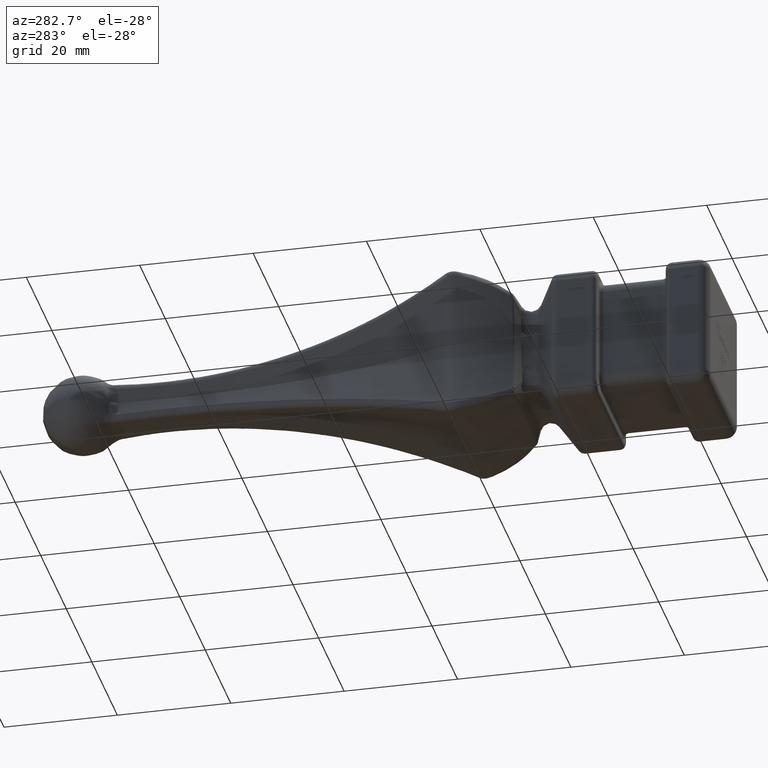
[diagram: clean part render]
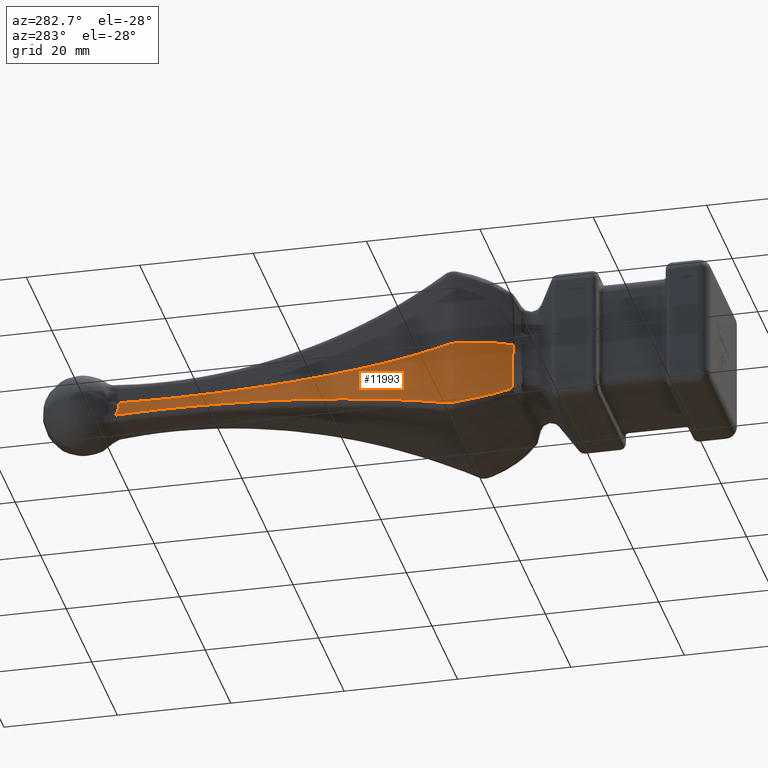
[diagram: same view with one face highlighted and labeled with its STEP entity id]
A machine part, auxiliary view. The second image highlights one B-rep face of the part: STEP entity #11993.
In plain terms, the highlighted face is a freeform B-spline surface patch.
Its self-contained STEP definition (entity closure, byte-faithful):
#14 = CARTESIAN_POINT ( 'NONE',  ( -13.98512764379215412, -0.3356598102932541461, -13.98512764379221451 ) ) ;
#179 = CARTESIAN_POINT ( 'NONE',  ( -9.539627466651655396, -10.18300411735938482, -8.234819032524248072 ) ) ;
#255 = CARTESIAN_POINT ( 'NONE',  ( -9.051590716567501360, -10.18300411735938305, 5.018131605746089186 ) ) ;
#363 = B_SPLINE_CURVE_WITH_KNOTS ( 'NONE', 3,
 ( #12695, #14404, #7314, #3518, #10648, #5333 ),
 .UNSPECIFIED., .F., .F.,
 ( 4, 2, 4 ),
 ( -5.943326225920290571E-08, 0.0007603462467077775396, 0.001520751926677814435 ),
 .UNSPECIFIED. ) ;
#407 = CARTESIAN_POINT ( 'NONE',  ( -11.71978409436971091, 0.6760241364080701310, 0.2434227091486908245 ) ) ;
#481 = CARTESIAN_POINT ( 'NONE',  ( -12.34097431892120156, -0.3356598102932545902, 6.969642051675049466 ) ) ;
#519 = CARTESIAN_POINT ( 'NONE',  ( -13.36861548744270856, 0.9769426254686837119, -12.19767723644735824 ) ) ;
#600 = CARTESIAN_POINT ( 'NONE',  ( -13.36861548744270856, 0.9769426254686837119, -12.19767723644735824 ) ) ;
#690 = ORIENTED_EDGE ( 'NONE', *, *, #4818, .T. ) ;
#954 = CARTESIAN_POINT ( 'NONE',  ( -12.01317934365865803, -0.1741682029892594186, 1.626303258728256454E-15 ) ) ;
#1100 = CARTESIAN_POINT ( 'NONE',  ( -11.98614334442297036, -0.5459188615091287167, -2.360680823997735045E-15 ) ) ;
#1180 = CARTESIAN_POINT ( 'NONE',  ( -9.808405869163907553, 5.630173729162039287, 1.138412281109779458E-15 ) ) ;
#1262 = CARTESIAN_POINT ( 'NONE',  ( -11.70022440348532200, 1.088498098395638936, -1.423015351387224570E-16 ) ) ;
#1676 = CARTESIAN_POINT ( 'NONE',  ( -11.90279600607053467, -6.148093008780580959, -10.77095069157962293 ) ) ;
#1744 = CARTESIAN_POINT ( 'NONE',  ( -13.93891618639455565, 0.6760241364080697979, -13.93891618639461605 ) ) ;
#1834 = CARTESIAN_POINT ( 'NONE',  ( -12.35587598936657194, 0.1731413304700787081, -7.101467335536204573 ) ) ;
#1839 = CARTESIAN_POINT ( 'NONE',  ( -13.35396439320118667, -1.349083168152269696, -12.15556201683326165 ) ) ;
#2063 = CARTESIAN_POINT ( 'NONE',  ( -9.283340074691645682, -10.54901235207815446, 8.211651741696011086 ) ) ;
#2172 = ORIENTED_EDGE ( 'NONE', *, *, #15639, .T. ) ;
#2210 = EDGE_CURVE ( 'NONE', #7235, #16739, #10115, .T. ) ;
#2226 = CARTESIAN_POINT ( 'NONE',  ( -10.79918964203841902, -7.420088566662868423, 5.246625741891536521 ) ) ;
#2292 = CARTESIAN_POINT ( 'NONE',  ( -8.935836979985364081, -10.36600823471876787, 5.002997097673067550 ) ) ;
#2779 = CARTESIAN_POINT ( 'NONE',  ( -3.571590396202373618, 36.70316311673712306, 4.065758146820643107E-16 ) ) ;
#2848 = CARTESIAN_POINT ( 'NONE',  ( -11.66061358486156152, -2.940226385294218758, -2.022714678043263293E-15 ) ) ;
#2929 = CARTESIAN_POINT ( 'NONE',  ( -4.187259005263953782, 30.68530135549060844, 4.065758146820637190E-16 ) ) ;
#3087 = CARTESIAN_POINT ( 'NONE',  ( -3.038437041209482548, 45.76824551359224813, -2.846030702774451111E-16 ) ) ;
#3165 = ORIENTED_EDGE ( 'NONE', *, *, #22010, .T. ) ;
#3397 = B_SPLINE_SURFACE_WITH_KNOTS ( 'NONE', 3, 3, ( 
 ( #12608, #18031, #5237, #19705, #9220, #3508, #14, #23388, #1744, #7216, #23309, #19853 ),
 ( #8890, #11048, #179, #7057, #5394, #7129, #7303, #14397, #12842, #19940, #10716, #21511 ),
 ( #12516, #16204, #14557, #9053, #21677, #9128, #12687, #1834, #14467, #5566, #3671, #16290 ),
 ( #10963, #3749, #16369, #18192, #7378, #20020, #7625, #13074, #407, #16435, #20090, #7460 ),
 ( #16523, #2292, #255, #5946, #2226, #22058, #481, #5711, #18593, #20263, #18431, #11422 ),
 ( #2063, #5642, #18280, #20339, #14942, #16672, #12929, #9532, #3837, #18361, #14867, #18518 ),
 ( #9369, #13233, #9294, #5795, #9450, #22212, #22130, #20175, #11283, #16747, #13010, #4060 ) ),
 .UNSPECIFIED., .F., .F., .F.,
 ( 4, 1, 1, 1, 4 ),
 ( 4, 3, 2, 1, 2, 4 ),
 ( 0.000000000000000000, 0.06250000000000004163, 0.1250000000000000833, 0.1875000000000000555, 0.2500000000000001665 ),
 ( -0.01000000000000000021, 0.000000000000000000, 0.1409755950064599250, 0.1473803183571097963, 0.1603551382681464577, 1.000000000000000000 ),
 .UNSPECIFIED. ) ;
#3508 = CARTESIAN_POINT ( 'NONE',  ( -13.29198864509185363, -4.128284202623072829, -13.29198864509188027 ) ) ;
#3518 = CARTESIAN_POINT ( 'NONE',  ( -13.55402796878899530, 0.0009056597423814681047, -12.33586052695374313 ) ) ;
#3639 = CARTESIAN_POINT ( 'NONE',  ( -4.441334683114435578, 35.42566771208881704, -3.203183386083684248 ) ) ;
#3658 = VERTEX_POINT ( 'NONE', #18400 ) ;
#3671 = CARTESIAN_POINT ( 'NONE',  ( -1.100276004097039406, 42.78077431313263901, 3.148358305465273954 ) ) ;
#3749 = CARTESIAN_POINT ( 'NONE',  ( -8.697324480793799495, -10.36600823471877497, 0.07270971805892470496 ) ) ;
#3837 = CARTESIAN_POINT ( 'NONE',  ( -13.26119801601832471, 0.6760241364080697979, 12.12695994987763193 ) ) ;
#3882 = CARTESIAN_POINT ( 'NONE',  ( -5.686332563332496370, 27.75882369919524351, -4.450302183466362749 ) ) ;
#3961 = CARTESIAN_POINT ( 'NONE',  ( -7.856967422305181969, 17.66019300185967822, -6.630885813753540248 ) ) ;
#4060 = CARTESIAN_POINT ( 'NONE',  ( -4.250000000000014211, 65.00000000000000000, 4.250000000000007105 ) ) ;
#4084 = FACE_OUTER_BOUND ( 'NONE', #20603, .T. ) ;
#4198 = CARTESIAN_POINT ( 'NONE',  ( -9.868869906714735407, -9.788937493245718713, -8.646629990690154699 ) ) ;
#4610 = CARTESIAN_POINT ( 'NONE',  ( -10.66013129964697370, -6.509692780330558648, -3.989525181567754104E-16 ) ) ;
#4765 = CARTESIAN_POINT ( 'NONE',  ( -10.40119084389370663, -7.199361203565610268, -2.947674656444965180E-16 ) ) ;
#4818 = EDGE_CURVE ( 'NONE', #9697, #16739, #6911, .T. ) ;
#4831 = CARTESIAN_POINT ( 'NONE',  ( -11.99726242370118356, -0.4536236356896284905, 1.626303258728257440E-15 ) ) ;
#5237 = CARTESIAN_POINT ( 'NONE',  ( -9.863700679619295641, -10.18300411735938482, -9.863700679619267220 ) ) ;
#5333 = CARTESIAN_POINT ( 'NONE',  ( -13.50771400292946822, -0.5004763222710708614, -12.30270213297043647 ) ) ;
#5394 = CARTESIAN_POINT ( 'NONE',  ( -11.47428454134254849, -7.420088566662869312, -10.05631275040277117 ) ) ;
#5442 = CARTESIAN_POINT ( 'NONE',  ( -9.213012362035417624, 12.75045876638583842, -7.996521701733918519 ) ) ;
#5566 = CARTESIAN_POINT ( 'NONE',  ( -3.180941838542599598, 20.45040467521440419, 3.627078444937531732 ) ) ;
#5613 = CARTESIAN_POINT ( 'NONE',  ( -3.695224056026937376, 61.43058906007146192, -2.523706378309231724 ) ) ;
#5642 = CARTESIAN_POINT ( 'NONE',  ( -9.411483770671656757, -10.36600823471876964, 8.259590246139600467 ) ) ;
#5681 = CARTESIAN_POINT ( 'NONE',  ( -3.432213147307811241, 50.95405950119683069, -2.213525492999731448 ) ) ;
#5711 = CARTESIAN_POINT ( 'NONE',  ( -12.35587598936656661, 0.1731413304700771538, 7.138364592670788156 ) ) ;
#5763 = CARTESIAN_POINT ( 'NONE',  ( -12.23354179892117877, 3.855460933943906987, -11.04735312861530616 ) ) ;
#5795 = CARTESIAN_POINT ( 'NONE',  ( -10.00000000000001421, -10.00000000000000000, 10.00000000000000178 ) ) ;
#5900 = ORIENTED_EDGE ( 'NONE', *, *, #10144, .T. ) ;
#5946 = CARTESIAN_POINT ( 'NONE',  ( -9.167344453149638639, -9.999999999999998224, 5.033266113819109933 ) ) ;
#6080 = CARTESIAN_POINT ( 'NONE',  ( -9.802525348160544993, -9.849515618328329225, -8.463641081275993017 ) ) ;
#6339 = CARTESIAN_POINT ( 'NONE',  ( -3.005720645575540306, 54.84213595486955484, 1.707618421664670075E-15 ) ) ;
#6468 = CARTESIAN_POINT ( 'NONE',  ( -9.379189880191095341, -9.862183010767243019, -5.659877517704218874 ) ) ;
#6487 = CARTESIAN_POINT ( 'NONE',  ( -11.96516779906353989, -0.7306953537297492529, -2.360680823997735045E-15 ) ) ;
#6517 = CARTESIAN_POINT ( 'NONE',  ( -9.802525348160544993, -9.849515618328329225, -8.463641081275993017 ) ) ;
#6564 = CARTESIAN_POINT ( 'NONE',  ( -3.198337484911176531, 59.38066502630075405, 9.757819552369539906E-16 ) ) ;
#6759 = EDGE_CURVE ( 'NONE', #15722, #21157, #12598, .T. ) ;
#6911 = B_SPLINE_CURVE_WITH_KNOTS ( 'NONE', 3,
 ( #13892, #19348, #6468, #19187, #15612, #19112 ),
 .UNSPECIFIED., .F., .F.,
 ( 4, 2, 4 ),
 ( 0.000000000000000000, 0.004253772877436994872, 0.008507545754873989743 ),
 .UNSPECIFIED. ) ;
#7057 = CARTESIAN_POINT ( 'NONE',  ( -9.667771162631664694, -10.00000000000000000, -8.355467255026738371 ) ) ;
#7129 = CARTESIAN_POINT ( 'NONE',  ( -12.72981100721624159, -4.128284202623072829, -11.20617133294153334 ) ) ;
#7216 = CARTESIAN_POINT ( 'NONE',  ( -6.111440610478125812, 20.45040467521440064, -6.111440610477865576 ) ) ;
#7235 = VERTEX_POINT ( 'NONE', #21265 ) ;
#7269 = CARTESIAN_POINT ( 'NONE',  ( -11.16262982213287636, 6.778637263769910604, -9.964173630148605909 ) ) ;
#7303 = CARTESIAN_POINT ( 'NONE',  ( -13.33078343975850011, -0.3356598102932541461, -11.72919606605194964 ) ) ;
#7309 = CARTESIAN_POINT ( 'NONE',  ( -13.17140544593945251, -2.186166821826514894, -11.98083737804433646 ) ) ;
#7314 = CARTESIAN_POINT ( 'NONE',  ( -13.50698150542802800, 0.5028577278399699590, -12.29850997811512059 ) ) ;
#7378 = CARTESIAN_POINT ( 'NONE',  ( -10.45996576412486512, -7.420088566662871976, -0.5125147883052542097 ) ) ;
#7425 = CARTESIAN_POINT ( 'NONE',  ( -3.449601854812960333, 56.17701402384283682, -2.247909891662708937 ) ) ;
#7460 = CARTESIAN_POINT ( 'NONE',  ( -3.708093277321281800, 64.99999999999998579, 1.149254302834634700E-14 ) ) ;
#7510 = CARTESIAN_POINT ( 'NONE',  ( -6.165413662437748243, 25.21162413607397568, -4.930955920778424151 ) ) ;
#7625 = CARTESIAN_POINT ( 'NONE',  ( -11.84282480964579065, -0.3356598102932541461, -0.07752911185643907022 ) ) ;
#8175 = CARTESIAN_POINT ( 'NONE',  ( -11.08292566228942455, 2.471344491763922679, -1.219727444046201363E-15 ) ) ;
#8324 = CARTESIAN_POINT ( 'NONE',  ( -4.574371802019728150, 27.68576157355451883, 1.138412281109779064E-15 ) ) ;
#8476 = CARTESIAN_POINT ( 'NONE',  ( -11.89585194579604632, -1.284083406933674176, -2.022714678043269999E-15 ) ) ;
#8890 = CARTESIAN_POINT ( 'NONE',  ( -9.283340074691633248, -10.54901235207815446, -7.993522587519268363 ) ) ;
#8897 = CARTESIAN_POINT ( 'NONE',  ( -13.43563545800734538, -0.9266783697935734310, -12.23374362147600181 ) ) ;
#9053 = CARTESIAN_POINT ( 'NONE',  ( -9.167344453149633310, -10.00000000000000178, -5.033266113819053977 ) ) ;
#9128 = CARTESIAN_POINT ( 'NONE',  ( -11.88004791809001581, -4.128284202623071941, -6.959057610347734624 ) ) ;
#9220 = CARTESIAN_POINT ( 'NONE',  ( -11.92148777896451861, -7.420088566662869312, -11.92148777896456124 ) ) ;
#9226 = CARTESIAN_POINT ( 'NONE',  ( -10.44879822242544520, -8.996742195134061149, -9.400427359067794697 ) ) ;
#9265 = CARTESIAN_POINT ( 'NONE',  ( -5.464387132029138172, 29.03473407034506337, -4.227808590928946231 ) ) ;
#9268 = B_SPLINE_CURVE_WITH_KNOTS ( 'NONE', 3,
 ( #12064, #12140, #22766, #15654, #17472, #21120 ),
 .UNSPECIFIED., .F., .F.,
 ( 4, 2, 4 ),
 ( 9.493048832834157882E-19, 0.001321927522235252089, 0.002643855044470503311 ),
 .UNSPECIFIED. ) ;
#9294 = CARTESIAN_POINT ( 'NONE',  ( -9.863700679619315181, -10.18300411735938482, 9.936410397678196560 ) ) ;
#9369 = CARTESIAN_POINT ( 'NONE',  ( -9.591102038857917123, -10.54901235207815446, 9.809231193034587903 ) ) ;
#9450 = CARTESIAN_POINT ( 'NONE',  ( -11.92148777896453637, -7.420088566662869312, 10.89645820235405083 ) ) ;
#9532 = CARTESIAN_POINT ( 'NONE',  ( -13.36384600673486389, 0.1731413304700777367, 11.78910055727523520 ) ) ;
#9589 = CARTESIAN_POINT ( 'NONE',  ( -9.977188902511276325, -9.680686628031963892, -8.911430801917203937 ) ) ;
#9697 = VERTEX_POINT ( 'NONE', #6517 ) ;
#9995 = CARTESIAN_POINT ( 'NONE',  ( -7.507254430136620194, 12.84071453848974365, -3.252606517456524642E-16 ) ) ;
#10115 = B_SPLINE_CURVE_WITH_KNOTS ( 'NONE', 3,
 ( #13697, #6564, #19135, #6339, #18977, #21104, #3087, #22673, #2779, #2929, #8324, #13914, #11899, #9995, #15494, #1180, #21027, #8175, #10217, #10149, #1262, #22753, #11969, #13617, #22831, #954, #4831, #1100, #6487, #15558, #8476, #2848, #15421, #4610, #4765, #17297, #17223, #20807 ),
 .UNSPECIFIED., .F., .F.,
 ( 4, 2, 2, 2, 2, 2, 2, 2, 2, 1, 2, 2, 2, 2, 2, 1, 2, 2, 2, 4 ),
 ( 0.004132318498976648470, 0.008671898284125525991, 0.01321147806927440091, 0.02229063763957215422, 0.03136979720986990405, 0.04044895678016766777, 0.04952811635046543148, 0.05860727592076317438, 0.06314685570591205277, 0.06428175065219927931, 0.06484919812534288563, 0.06541664559848649196, 0.06598409307163011217, 0.06655154054477371850, 0.06683526428134552166, 0.06711898801791732483, 0.06768643549106093116, 0.07222601527620980955, 0.07449580516878424874, 0.07676559506135868793 ),
 .UNSPECIFIED. ) ;
#10144 = EDGE_CURVE ( 'NONE', #3658, #11938, #18074, .T. ) ;
#10149 = CARTESIAN_POINT ( 'NONE',  ( -11.54262544577878735, 1.432880853096399898, -1.423015351387248482E-16 ) ) ;
#10217 = CARTESIAN_POINT ( 'NONE',  ( -11.30888985683813175, 1.950535685738695957, -5.080164804452391083E-14 ) ) ;
#10648 = CARTESIAN_POINT ( 'NONE',  ( -13.54672219189079563, -0.2516042753707571356, -12.33076236057471142 ) ) ;
#10716 = CARTESIAN_POINT ( 'NONE',  ( -2.108233144686161520, 42.78077431313261769, -0.8342126229220272471 ) ) ;
#10722 = CARTESIAN_POINT ( 'NONE',  ( -12.74012455253977549, -3.827609955145984344, -11.56839830137604785 ) ) ;
#10963 = CARTESIAN_POINT ( 'NONE',  ( -8.587827057705515799, -10.54901235207815979, 0.1090645770883753446 ) ) ;
#11048 = CARTESIAN_POINT ( 'NONE',  ( -9.411483770671644322, -10.36600823471876964, -8.114170810021757774 ) ) ;
#11053 = CARTESIAN_POINT ( 'NONE',  ( -13.50771400292946822, -0.5004763222710708614, -12.30270213297043647 ) ) ;
#11283 = CARTESIAN_POINT ( 'NONE',  ( -13.93891618639457164, 0.6760241364080697979, 14.42576160469201518 ) ) ;
#11405 = CARTESIAN_POINT ( 'NONE',  ( -9.940431942621472672, -9.718060107693483829, -8.823938542720618727 ) ) ;
#11422 = CARTESIAN_POINT ( 'NONE',  ( -3.833801712783556415, 64.99999999999998579, 2.144553377138878947 ) ) ;
#11899 = CARTESIAN_POINT ( 'NONE',  ( -6.112934183809785260, 18.73424335513332650, -3.252606517456503934E-16 ) ) ;
#11938 = VERTEX_POINT ( 'NONE', #23152 ) ;
#11969 = CARTESIAN_POINT ( 'NONE',  ( -11.90946396946478103, 0.5659037189521546329, -8.131516293641284488E-17 ) ) ;
#11993 = ADVANCED_FACE ( 'NONE', ( #4084 ), #3397, .T. ) ;
#12064 = CARTESIAN_POINT ( 'NONE',  ( -3.317792656004956431, 60.88913786003062967, 1.219727444046192488E-15 ) ) ;
#12140 = CARTESIAN_POINT ( 'NONE',  ( -3.352465431682127850, 60.89052080326251826, -0.4398871799431016139 ) ) ;
#12516 = CARTESIAN_POINT ( 'NONE',  ( -8.820083243403221473, -10.54901235207815624, -4.769733435423287204 ) ) ;
#12598 = B_SPLINE_CURVE_WITH_KNOTS ( 'NONE', 3,
 ( #5613, #18243, #7425, #5681, #21957, #14438, #3639, #9265, #3882, #7510, #20139, #14748, #3961, #5442, #18079, #7269, #16573, #5763, #20230, #19906, #16877, #600 ),
 .UNSPECIFIED., .F., .F.,
 ( 4, 2, 2, 2, 2, 2, 2, 2, 2, 2, 4 ),
 ( 0.003593303953008540955, 0.01153155944662571236, 0.01946981494024288550, 0.03534632592747722485, 0.03931545367428580795, 0.04328458142109438411, 0.05122283691471153644, 0.05916109240832870264, 0.06313022015513727880, 0.06511478402854156688, 0.06709934790194584109 ),
 .UNSPECIFIED. ) ;
#12608 = CARTESIAN_POINT ( 'NONE',  ( -9.591102038857897583, -10.54901235207815446, -9.591102038857858503 ) ) ;
#12687 = CARTESIAN_POINT ( 'NONE',  ( -12.34097431892120689, -0.3356598102932532579, -7.124700275387899850 ) ) ;
#12695 = CARTESIAN_POINT ( 'NONE',  ( -13.36861548744270856, 0.9769426254686837119, -12.19767723644735824 ) ) ;
#12842 = CARTESIAN_POINT ( 'NONE',  ( -13.26119801601831938, 0.6760241364080697979, -11.64011453158023635 ) ) ;
#12929 = CARTESIAN_POINT ( 'NONE',  ( -13.33078343975850366, -0.3356598102932541461, 11.57413784233908416 ) ) ;
#13010 = CARTESIAN_POINT ( 'NONE',  ( -2.773624533673034964, 42.78077431313261769, 21.33295401764565113 ) ) ;
#13074 = CARTESIAN_POINT ( 'NONE',  ( -11.84855467360442738, 0.1731413304700779032, 0.01844862856727765704 ) ) ;
#13233 = CARTESIAN_POINT ( 'NONE',  ( -9.727401359238616152, -10.36600823471876964, 9.872820795356393120 ) ) ;
#13617 = CARTESIAN_POINT ( 'NONE',  ( -11.95272103914164141, 0.3854485540974040836, 3.557538378468060808E-17 ) ) ;
#13697 = CARTESIAN_POINT ( 'NONE',  ( -3.317792656004956431, 60.88913786003062967, 1.219727444046192488E-15 ) ) ;
#13738 = ORIENTED_EDGE ( 'NONE', *, *, #20818, .T. ) ;
#13892 = CARTESIAN_POINT ( 'NONE',  ( -9.802525348160544993, -9.849515618328329225, -8.463641081275993017 ) ) ;
#13914 = CARTESIAN_POINT ( 'NONE',  ( -5.537556231489423553, 21.70906552160966285, 1.138412281109778670E-15 ) ) ;
#14332 = CARTESIAN_POINT ( 'NONE',  ( -12.48452389885670932, -4.618402967944013504, -11.32431571643599355 ) ) ;
#14397 = CARTESIAN_POINT ( 'NONE',  ( -13.36384600673485856, 0.1731413304700777367, -11.75220330014066761 ) ) ;
#14404 = CARTESIAN_POINT ( 'NONE',  ( -13.45352770620779737, 0.7454325682719350477, -12.25632294754217533 ) ) ;
#14438 = CARTESIAN_POINT ( 'NONE',  ( -3.897992912293513079, 40.57451386293886486, -2.661888795475146452 ) ) ;
#14467 = CARTESIAN_POINT ( 'NONE',  ( -12.23587132452890280, 0.6760241364080709081, -6.945521042353576924 ) ) ;
#14557 = CARTESIAN_POINT ( 'NONE',  ( -9.051590716567496031, -10.18300411735938660, -4.945421887687131424 ) ) ;
#14748 = CARTESIAN_POINT ( 'NONE',  ( -7.242726089806791556, 20.15644624332436408, -6.013113143471123578 ) ) ;
#14867 = CARTESIAN_POINT ( 'NONE',  ( -2.108233144686157967, 42.78077431313261769, 19.39354210689467450 ) ) ;
#14923 = CARTESIAN_POINT ( 'NONE',  ( -10.01512186313452446, -9.640704283509769823, -8.997233162591301792 ) ) ;
#14942 = CARTESIAN_POINT ( 'NONE',  ( -11.47428454134255738, -7.420088566662869312, 9.031283173792266084 ) ) ;
#15129 = CARTESIAN_POINT ( 'NONE',  ( -9.089504063390478450, -9.851445849495235052, 8.385626177817573357E-16 ) ) ;
#15421 = CARTESIAN_POINT ( 'NONE',  ( -11.33844760632056747, -4.402635278492754267, -3.989525181567756569E-16 ) ) ;
#15494 = CARTESIAN_POINT ( 'NONE',  ( -8.324470996685844781, 9.924349996973639065, 1.138412281109780642E-15 ) ) ;
#15558 = CARTESIAN_POINT ( 'NONE',  ( -11.93243429766395280, -1.007672936048295220, 4.178837045279091512E-15 ) ) ;
#15612 = CARTESIAN_POINT ( 'NONE',  ( -9.086512968346287522, -9.855107471773846939, -1.417941997374183360 ) ) ;
#15639 = EDGE_CURVE ( 'NONE', #21157, #3658, #363, .T. ) ;
#15654 = CARTESIAN_POINT ( 'NONE',  ( -3.533143131304358864, 61.12110105563702689, -1.720528513449258945 ) ) ;
#15722 = VERTEX_POINT ( 'NONE', #16051 ) ;
#16051 = CARTESIAN_POINT ( 'NONE',  ( -3.695224056026937376, 61.43058906007146192, -2.523706378309231724 ) ) ;
#16204 = CARTESIAN_POINT ( 'NONE',  ( -8.935836979985358752, -10.36600823471877142, -4.857577661555208870 ) ) ;
#16290 = CARTESIAN_POINT ( 'NONE',  ( -3.833801712783555526, 65.00000000000004263, -2.144553377138851857 ) ) ;
#16369 = CARTESIAN_POINT ( 'NONE',  ( -8.806821903882084968, -10.18300411735939015, 0.03635485902947406534 ) ) ;
#16374 = CARTESIAN_POINT ( 'NONE',  ( -11.57669130816881164, -6.887000417382964201, -10.46167240252932018 ) ) ;
#16435 = CARTESIAN_POINT ( 'NONE',  ( -2.290964565412154208, 20.45040467521440775, 13.74513794084074902 ) ) ;
#16523 = CARTESIAN_POINT ( 'NONE',  ( -8.820083243403226803, -10.54901235207815269, 4.987862589600046803 ) ) ;
#16573 = CARTESIAN_POINT ( 'NONE',  ( -11.58129466433951471, 5.603009350150073509, -10.38733853637755722 ) ) ;
#16672 = CARTESIAN_POINT ( 'NONE',  ( -12.72981100721624870, -4.128284202623072829, 10.25808600539501647 ) ) ;
#16739 = VERTEX_POINT ( 'NONE', #15129 ) ;
#16747 = CARTESIAN_POINT ( 'NONE',  ( -6.111440610478135582, 20.45040467521440064, 33.60171649215941869 ) ) ;
#16877 = CARTESIAN_POINT ( 'NONE',  ( -13.13493789343376150, 1.548602519664962873, -11.96059040414681185 ) ) ;
#16887 = CARTESIAN_POINT ( 'NONE',  ( -9.833571191659482125, -9.823415212693543452, -8.557344155896522864 ) ) ;
#17223 = CARTESIAN_POINT ( 'NONE',  ( -9.471783287902264092, -9.209422851092394779, 2.247601925539286265E-14 ) ) ;
#17297 = CARTESIAN_POINT ( 'NONE',  ( -9.806936884686452416, -8.549195353194665614, -2.947674656444965180E-16 ) ) ;
#17472 = CARTESIAN_POINT ( 'NONE',  ( -3.609606331778355770, 61.25451730530360805, -2.128575784365695611 ) ) ;
#17657 = ORIENTED_EDGE ( 'NONE', *, *, #2210, .F. ) ;
#17958 = CARTESIAN_POINT ( 'NONE',  ( -10.01512186313452446, -9.640704283509769823, -8.997233162591301792 ) ) ;
#18031 = CARTESIAN_POINT ( 'NONE',  ( -9.727401359238596612, -10.36600823471876964, -9.727401359238562861 ) ) ;
#18074 = B_SPLINE_CURVE_WITH_KNOTS ( 'NONE', 3,
 ( #11053, #8897, #1839, #7309, #19946, #10722, #14332, #1676, #16374, #23395, #9226, #17958 ),
 .UNSPECIFIED., .F., .F.,
 ( 4, 2, 2, 2, 2, 4 ),
 ( -5.992872993461137931E-08, 0.001313100002246062699, 0.002626259933222060104, 0.005252579795174055349, 0.007878899657126047992, 0.01050521951907804584 ),
 .UNSPECIFIED. ) ;
#18079 = CARTESIAN_POINT ( 'NONE',  ( -9.954568176066436180, 10.33677143971204870, -8.744111148807585110 ) ) ;
#18192 = CARTESIAN_POINT ( 'NONE',  ( -8.916319326970370440, -10.00000000000000533, 2.341876692568689577E-14 ) ) ;
#18243 = CARTESIAN_POINT ( 'NONE',  ( -3.531057162300554886, 58.79815374709123432, -2.340519311815917103 ) ) ;
#18280 = CARTESIAN_POINT ( 'NONE',  ( -9.539627466651667831, -10.18300411735938482, 8.307528750583191623 ) ) ;
#18361 = CARTESIAN_POINT ( 'NONE',  ( -4.946561883244180891, 20.45040467521440064, 30.41822582449333012 ) ) ;
#18400 = CARTESIAN_POINT ( 'NONE',  ( -13.50771400292946822, -0.5004763222710708614, -12.30270213297043647 ) ) ;
#18431 = CARTESIAN_POINT ( 'NONE',  ( -1.100276004097028970, 42.78077431313260348, 15.41097117850738307 ) ) ;
#18518 = CARTESIAN_POINT ( 'NONE',  ( -4.084095949260219349, 65.00000000000000000, 3.554666846164149963 ) ) ;
#18593 = CARTESIAN_POINT ( 'NONE',  ( -12.23587132452889747, 0.6760241364080692428, 7.432366460650985829 ) ) ;
#18977 = CARTESIAN_POINT ( 'NONE',  ( -2.977972344792514825, 53.32922478580398717, -8.944667923005403692E-16 ) ) ;
#19112 = CARTESIAN_POINT ( 'NONE',  ( -9.089504063390478450, -9.851445849495235052, 8.385626177817573357E-16 ) ) ;
#19135 = CARTESIAN_POINT ( 'NONE',  ( -3.116044884750400090, 57.86894267528598590, 1.707618421664669681E-15 ) ) ;
#19187 = CARTESIAN_POINT ( 'NONE',  ( -9.142156062617612378, -9.861087585487629426, -2.834887468002613264 ) ) ;
#19284 = ORIENTED_EDGE ( 'NONE', *, *, #6759, .T. ) ;
#19348 = CARTESIAN_POINT ( 'NONE',  ( -9.560312913074836771, -9.857608665312453056, -7.066479370975653040 ) ) ;
#19705 = CARTESIAN_POINT ( 'NONE',  ( -9.999999999999994671, -10.00000000000000000, -9.999999999999971578 ) ) ;
#19853 = CARTESIAN_POINT ( 'NONE',  ( -4.250000000000000000, 65.00000000000000000, -4.249999999999992006 ) ) ;
#19906 = CARTESIAN_POINT ( 'NONE',  ( -12.90600556105860264, 2.121408518378927965, -11.72850180780863560 ) ) ;
#19940 = CARTESIAN_POINT ( 'NONE',  ( -4.946561883244191549, 20.45040467521440064, -2.927949942811796546 ) ) ;
#19946 = CARTESIAN_POINT ( 'NONE',  ( -13.07025127210329707, -2.601761277392956373, -11.88403993321351493 ) ) ;
#20020 = CARTESIAN_POINT ( 'NONE',  ( -11.45262528844217087, -4.128284202623073718, -0.4740426637732627069 ) ) ;
#20090 = CARTESIAN_POINT ( 'NONE',  ( -0.5924331498006769614, 42.78077431313261769, 9.279664741986314525 ) ) ;
#20139 = CARTESIAN_POINT ( 'NONE',  ( -6.422514604118225279, 23.94084922074712196, -5.189081815503889139 ) ) ;
#20175 = CARTESIAN_POINT ( 'NONE',  ( -14.03014205141056614, 0.1731413304700777367, 14.06703930854518347 ) ) ;
#20230 = CARTESIAN_POINT ( 'NONE',  ( -12.45504600037835807, 3.275480222544544517, -11.27161785961884632 ) ) ;
#20263 = CARTESIAN_POINT ( 'NONE',  ( -3.180941838542582278, 20.45040467521439709, 23.86319743674402005 ) ) ;
#20339 = CARTESIAN_POINT ( 'NONE',  ( -9.667771162631677129, -10.00000000000000000, 8.355467255026781004 ) ) ;
#20451 = B_SPLINE_CURVE_WITH_KNOTS ( 'NONE', 3,
 ( #14923, #9589, #11405, #4198, #16887, #6080 ),
 .UNSPECIFIED., .F., .F.,
 ( 4, 2, 4 ),
 ( 0.000000000000000000, 0.0003059172115311473671, 0.0006118344230622947341 ),
 .UNSPECIFIED. ) ;
#20603 = EDGE_LOOP ( 'NONE', ( #17657, #3165, #19284, #2172, #5900, #13738, #690 ) ) ;
#20807 = CARTESIAN_POINT ( 'NONE',  ( -9.089504063390478450, -9.851445849495235052, 8.385626177817573357E-16 ) ) ;
#20818 = EDGE_CURVE ( 'NONE', #11938, #9697, #20451, .T. ) ;
#21027 = CARTESIAN_POINT ( 'NONE',  ( -10.34607084951032796, 4.214013114937582571, -1.219727444046192488E-15 ) ) ;
#21104 = CARTESIAN_POINT ( 'NONE',  ( -2.961507229470928149, 48.79169025128270221, -8.944667923005411581E-16 ) ) ;
#21120 = CARTESIAN_POINT ( 'NONE',  ( -3.695224056026937376, 61.43058906007146192, -2.523706378309231724 ) ) ;
#21157 = VERTEX_POINT ( 'NONE', #519 ) ;
#21265 = CARTESIAN_POINT ( 'NONE',  ( -3.317792656004956431, 60.88913786003062967, 1.219727444046192488E-15 ) ) ;
#21511 = CARTESIAN_POINT ( 'NONE',  ( -4.084095949260217573, 65.00000000000000000, -3.554666846164126426 ) ) ;
#21677 = CARTESIAN_POINT ( 'NONE',  ( -10.79918964203841902, -7.420088566662869312, -6.271655318502029175 ) ) ;
#21957 = CARTESIAN_POINT ( 'NONE',  ( -3.496670177654472855, 48.35231863837392297, -2.272498633630136045 ) ) ;
#22010 = EDGE_CURVE ( 'NONE', #7235, #15722, #9268, .T. ) ;
#22058 = CARTESIAN_POINT ( 'NONE',  ( -11.88004791809001226, -4.128284202623071941, 6.010972282801230193 ) ) ;
#22130 = CARTESIAN_POINT ( 'NONE',  ( -13.98512764379217188, -0.3356598102932541461, 13.83006942007935258 ) ) ;
#22212 = CARTESIAN_POINT ( 'NONE',  ( -13.29198864509187139, -4.128284202623072829, 12.34390331754536518 ) ) ;
#22673 = CARTESIAN_POINT ( 'NONE',  ( -3.342985509827317347, 39.72406152464487405, -2.846030702774450618E-16 ) ) ;
#22753 = CARTESIAN_POINT ( 'NONE',  ( -11.78579843079820755, 0.9180738902487405317, -8.131516293641283255E-17 ) ) ;
#22766 = CARTESIAN_POINT ( 'NONE',  ( -3.404658050752686016, 60.93895176320313567, -0.8777465965532257330 ) ) ;
#22831 = CARTESIAN_POINT ( 'NONE',  ( -12.00477625561942574, 0.01643149219898742269, 3.557538378468068203E-17 ) ) ;
#23152 = CARTESIAN_POINT ( 'NONE',  ( -10.01512186313452446, -9.640704283509769823, -8.997233162591301792 ) ) ;
#23309 = CARTESIAN_POINT ( 'NONE',  ( -2.773624533673021197, 42.78077431313261769, -2.773624533672995440 ) ) ;
#23388 = CARTESIAN_POINT ( 'NONE',  ( -14.03014205141055015, 0.1731413304700777367, -14.03014205141061055 ) ) ;
#23395 = CARTESIAN_POINT ( 'NONE',  ( -10.85017778978892267, -8.311042932869337818, -9.776852760480966964 ) ) ;